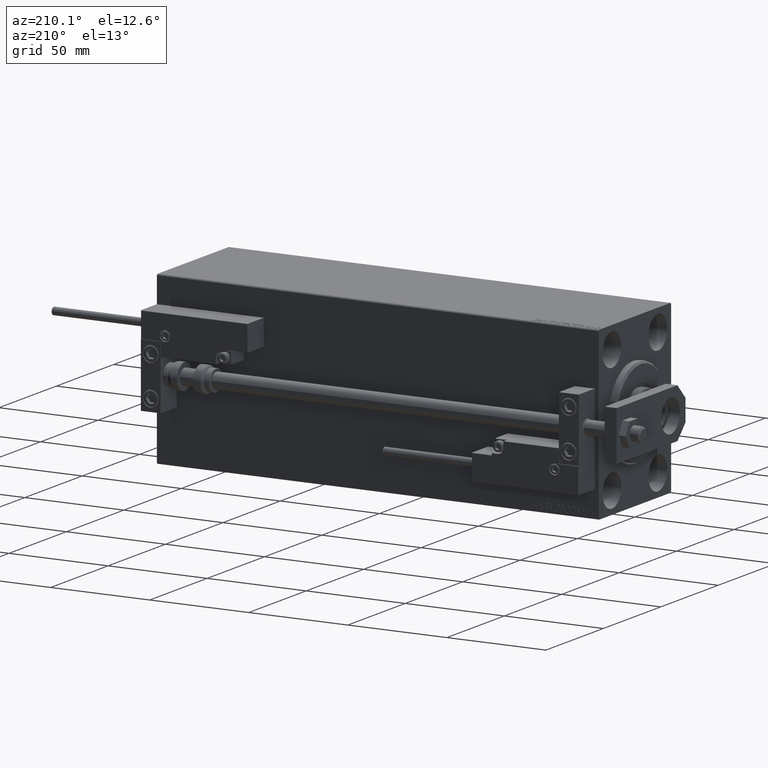
[diagram: clean part render]
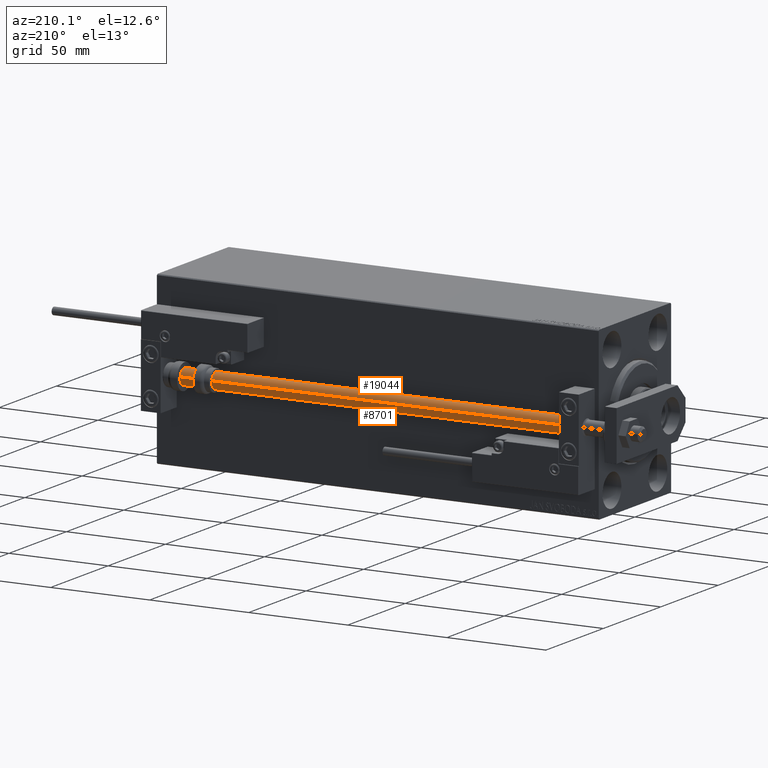
[diagram: same view with one multi-face feature highlighted, each face labeled with its STEP entity id]
A machine part, auxiliary view. The highlighted faces form ONE feature: a constant-radius fillet chain: 2 tangent blend faces with common blend radius 4 mm. The faces share edges in the B-rep.
Their STEP definitions:
[1] entity #8701 (Cylinder):
#466 = DIRECTION ( 'NONE',  ( -0.000000000000000000, -0.000000000000000000, -1.000000000000000000 ) ) ;
#1382 = VERTEX_POINT ( 'NONE', #27946 ) ;
#3140 = LINE ( 'NONE', #18574, #17905 ) ;
#3462 = EDGE_LOOP ( 'NONE', ( #9826, #22647, #48481, #3965 ) ) ;
#3965 = ORIENTED_EDGE ( 'NONE', *, *, #37628, .T. ) ;
#7570 = LINE ( 'NONE', #38946, #32450 ) ;
#8480 = CYLINDRICAL_SURFACE ( 'NONE', #49321, 4.000000000000000000 ) ;
#8701 = ADVANCED_FACE ( 'NONE', ( #31772 ), #8480, .T. ) ;
#8987 = DIRECTION ( 'NONE',  ( -0.000000000000000000, -0.000000000000000000, -1.000000000000000000 ) ) ;
#9046 = VERTEX_POINT ( 'NONE', #15259 ) ;
#9731 = CARTESIAN_POINT ( 'NONE',  ( 0.000000000000000000, 0.000000000000000000, 2.000000000000029310 ) ) ;
#9826 = ORIENTED_EDGE ( 'NONE', *, *, #41014, .F. ) ;
#11802 = EDGE_CURVE ( 'NONE', #9046, #30771, #7570, .T. ) ;
#12765 = CARTESIAN_POINT ( 'NONE',  ( 0.000000000000000000, 0.000000000000000000, 223.0000000000000000 ) ) ;
#14255 = CARTESIAN_POINT ( 'NONE',  ( 4.000000000000000000, 4.898587196589411843E-16, 2.000000000000029310 ) ) ;
#15259 = CARTESIAN_POINT ( 'NONE',  ( -4.000000000000000000, 0.000000000000000000, 223.0000000000000000 ) ) ;
#16937 = CIRCLE ( 'NONE', #35560, 4.000000000000000000 ) ;
#17905 = VECTOR ( 'NONE', #26429, 1000.000000000000000 ) ;
#18574 = CARTESIAN_POINT ( 'NONE',  ( 4.000000000000000000, 4.898587196589411843E-16, 223.0000000000000000 ) ) ;
#19100 = CARTESIAN_POINT ( 'NONE',  ( -4.000000000000000000, 0.000000000000000000, 2.000000000000029310 ) ) ;
#21870 = DIRECTION ( 'NONE',  ( -0.000000000000000000, -0.000000000000000000, 1.000000000000000000 ) ) ;
#22647 = ORIENTED_EDGE ( 'NONE', *, *, #32384, .F. ) ;
#23187 = VERTEX_POINT ( 'NONE', #14255 ) ;
#24174 = DIRECTION ( 'NONE',  ( -1.000000000000000000, 0.000000000000000000, 0.000000000000000000 ) ) ;
#26429 = DIRECTION ( 'NONE',  ( -0.000000000000000000, -0.000000000000000000, -1.000000000000000000 ) ) ;
#27545 = CIRCLE ( 'NONE', #34006, 4.000000000000000000 ) ;
#27946 = CARTESIAN_POINT ( 'NONE',  ( 4.000000000000000000, 4.898587196589411843E-16, 223.0000000000000000 ) ) ;
#30771 = VERTEX_POINT ( 'NONE', #19100 ) ;
#31189 = DIRECTION ( 'NONE',  ( 0.000000000000000000, 0.000000000000000000, 1.000000000000000000 ) ) ;
#31772 = FACE_OUTER_BOUND ( 'NONE', #3462, .T. ) ;
#32384 = EDGE_CURVE ( 'NONE', #9046, #1382, #16937, .T. ) ;
#32450 = VECTOR ( 'NONE', #466, 1000.000000000000000 ) ;
#34006 = AXIS2_PLACEMENT_3D ( 'NONE', #9731, #21870, #36800 ) ;
#34983 = CARTESIAN_POINT ( 'NONE',  ( 0.000000000000000000, 0.000000000000000000, 223.0000000000000000 ) ) ;
#35560 = AXIS2_PLACEMENT_3D ( 'NONE', #34983, #31189, #46896 ) ;
#36800 = DIRECTION ( 'NONE',  ( 1.000000000000000000, 0.000000000000000000, 0.000000000000000000 ) ) ;
#37628 = EDGE_CURVE ( 'NONE', #30771, #23187, #27545, .T. ) ;
#38946 = CARTESIAN_POINT ( 'NONE',  ( -4.000000000000000000, 0.000000000000000000, 223.0000000000000000 ) ) ;
#41014 = EDGE_CURVE ( 'NONE', #1382, #23187, #3140, .T. ) ;
#46896 = DIRECTION ( 'NONE',  ( 1.000000000000000000, 0.000000000000000000, 0.000000000000000000 ) ) ;
#48481 = ORIENTED_EDGE ( 'NONE', *, *, #11802, .T. ) ;
#49321 = AXIS2_PLACEMENT_3D ( 'NONE', #12765, #8987, #24174 ) ;
[2] entity #19044 (Cylinder):
#80 = AXIS2_PLACEMENT_3D ( 'NONE', #44790, #10109, #32404 ) ;
#466 = DIRECTION ( 'NONE',  ( -0.000000000000000000, -0.000000000000000000, -1.000000000000000000 ) ) ;
#1382 = VERTEX_POINT ( 'NONE', #27946 ) ;
#1553 = DIRECTION ( 'NONE',  ( -0.000000000000000000, -0.000000000000000000, -1.000000000000000000 ) ) ;
#3140 = LINE ( 'NONE', #18574, #17905 ) ;
#6487 = EDGE_LOOP ( 'NONE', ( #30789, #26009, #41691, #42719 ) ) ;
#7570 = LINE ( 'NONE', #38946, #32450 ) ;
#9046 = VERTEX_POINT ( 'NONE', #15259 ) ;
#10047 = DIRECTION ( 'NONE',  ( 1.000000000000000000, 0.000000000000000000, 0.000000000000000000 ) ) ;
#10109 = DIRECTION ( 'NONE',  ( 0.000000000000000000, 0.000000000000000000, 1.000000000000000000 ) ) ;
#10767 = EDGE_CURVE ( 'NONE', #1382, #9046, #25125, .T. ) ;
#11802 = EDGE_CURVE ( 'NONE', #9046, #30771, #7570, .T. ) ;
#14255 = CARTESIAN_POINT ( 'NONE',  ( 4.000000000000000000, 4.898587196589411843E-16, 2.000000000000029310 ) ) ;
#15259 = CARTESIAN_POINT ( 'NONE',  ( -4.000000000000000000, 0.000000000000000000, 223.0000000000000000 ) ) ;
#17905 = VECTOR ( 'NONE', #26429, 1000.000000000000000 ) ;
#18574 = CARTESIAN_POINT ( 'NONE',  ( 4.000000000000000000, 4.898587196589411843E-16, 223.0000000000000000 ) ) ;
#18989 = AXIS2_PLACEMENT_3D ( 'NONE', #34335, #49797, #10047 ) ;
#19044 = ADVANCED_FACE ( 'NONE', ( #28872 ), #32908, .T. ) ;
#19100 = CARTESIAN_POINT ( 'NONE',  ( -4.000000000000000000, 0.000000000000000000, 2.000000000000029310 ) ) ;
#21216 = EDGE_CURVE ( 'NONE', #23187, #30771, #35984, .T. ) ;
#23187 = VERTEX_POINT ( 'NONE', #14255 ) ;
#25125 = CIRCLE ( 'NONE', #80, 4.000000000000000000 ) ;
#26009 = ORIENTED_EDGE ( 'NONE', *, *, #41014, .T. ) ;
#26429 = DIRECTION ( 'NONE',  ( -0.000000000000000000, -0.000000000000000000, -1.000000000000000000 ) ) ;
#27946 = CARTESIAN_POINT ( 'NONE',  ( 4.000000000000000000, 4.898587196589411843E-16, 223.0000000000000000 ) ) ;
#28872 = FACE_OUTER_BOUND ( 'NONE', #6487, .T. ) ;
#30771 = VERTEX_POINT ( 'NONE', #19100 ) ;
#30789 = ORIENTED_EDGE ( 'NONE', *, *, #10767, .F. ) ;
#32404 = DIRECTION ( 'NONE',  ( 1.000000000000000000, 0.000000000000000000, 0.000000000000000000 ) ) ;
#32450 = VECTOR ( 'NONE', #466, 1000.000000000000000 ) ;
#32908 = CYLINDRICAL_SURFACE ( 'NONE', #35987, 4.000000000000000000 ) ;
#34335 = CARTESIAN_POINT ( 'NONE',  ( 0.000000000000000000, 0.000000000000000000, 2.000000000000029310 ) ) ;
#35984 = CIRCLE ( 'NONE', #18989, 4.000000000000000000 ) ;
#35987 = AXIS2_PLACEMENT_3D ( 'NONE', #44578, #1553, #36958 ) ;
#36958 = DIRECTION ( 'NONE',  ( -1.000000000000000000, 0.000000000000000000, 0.000000000000000000 ) ) ;
#38946 = CARTESIAN_POINT ( 'NONE',  ( -4.000000000000000000, 0.000000000000000000, 223.0000000000000000 ) ) ;
#41014 = EDGE_CURVE ( 'NONE', #1382, #23187, #3140, .T. ) ;
#41691 = ORIENTED_EDGE ( 'NONE', *, *, #21216, .T. ) ;
#42719 = ORIENTED_EDGE ( 'NONE', *, *, #11802, .F. ) ;
#44578 = CARTESIAN_POINT ( 'NONE',  ( 0.000000000000000000, 0.000000000000000000, 223.0000000000000000 ) ) ;
#44790 = CARTESIAN_POINT ( 'NONE',  ( 0.000000000000000000, 0.000000000000000000, 223.0000000000000000 ) ) ;
#49797 = DIRECTION ( 'NONE',  ( -0.000000000000000000, -0.000000000000000000, 1.000000000000000000 ) ) ;